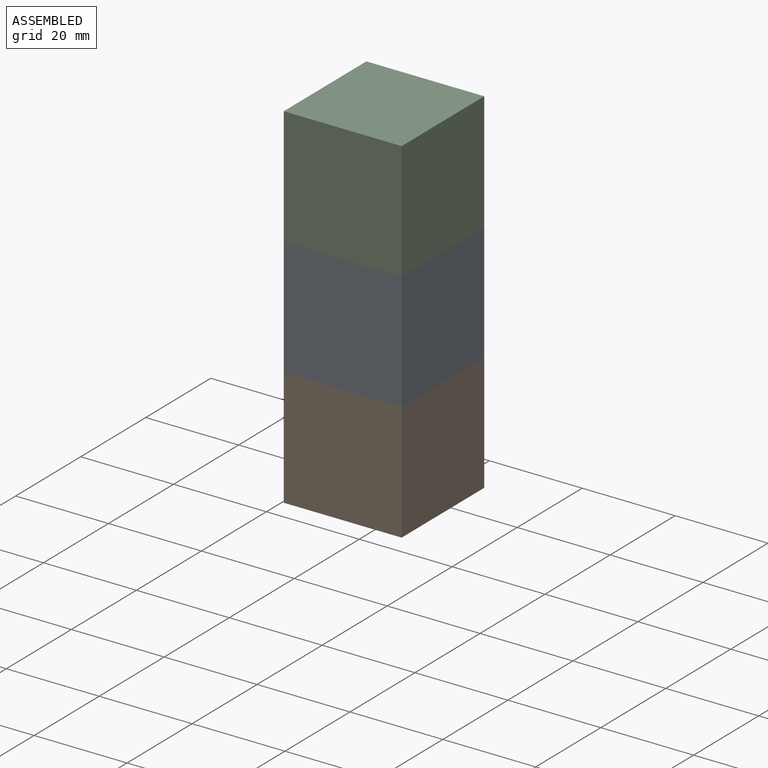
[diagram: assembled view]
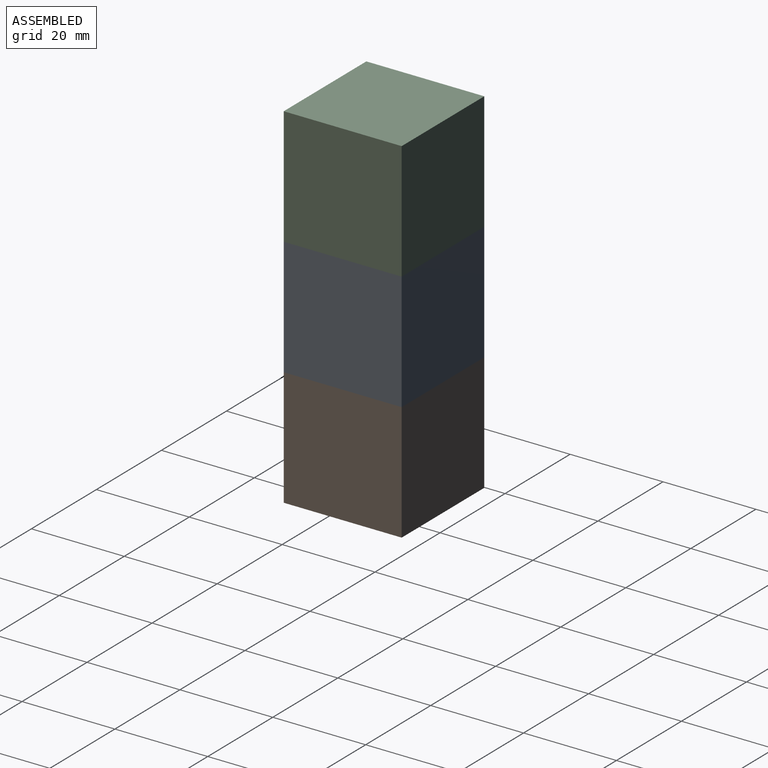
[diagram: assembled view, second angle]
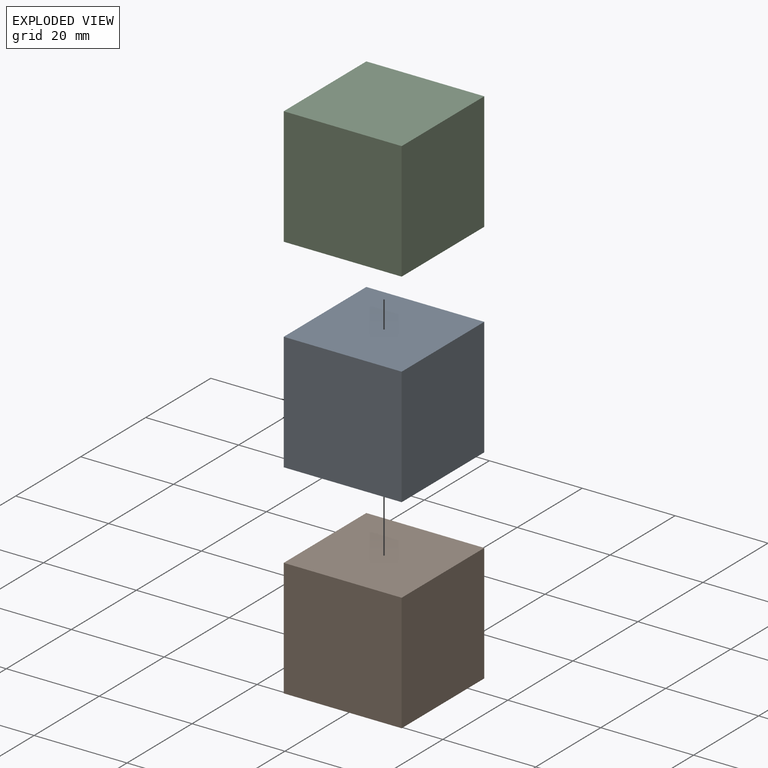
[diagram: exploded view]
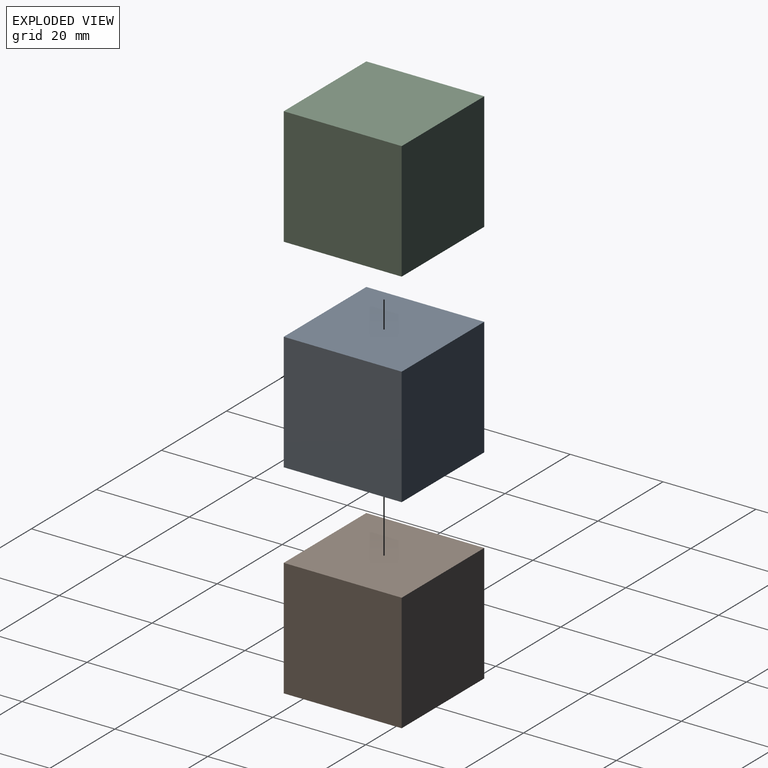
[diagram: exploded view, second angle]
ASSEMBLY  parts=3 mates=4
PART A: 6 faces, bbox 25.4x25.4x25.4 mm
  f0: plane 25.4x25.4mm, normal (-1,0,0), area 645.2mm2, adj f1,f3,f4,f5
  f1: plane 25.4x25.4mm, normal (0,0,-1), area 645.2mm2, adj f0,f2,f4,f5
  f2: plane 25.4x25.4mm, normal (1,0,0), area 645.2mm2, adj f1,f3,f4,f5
  f3: plane 25.4x25.4mm, normal (0,0,1), area 645.2mm2, adj f0,f2,f4,f5
  f4: plane 25.4x25.4mm, normal (0,-1,0), area 645.2mm2, adj f0,f1,f2,f3
  f5: plane 25.4x25.4mm, normal (0,1,0), area 645.2mm2, adj f0,f1,f2,f3
PART B: same geometry as A
PART C: same geometry as A
PLACE A t=(-34.51,2.83,-36.87)mm
PLACE B t=(-34.51,2.83,-62.27)mm
PLACE C t=(-34.51,2.83,-11.47)mm
MATE fastened A.f3 <-> C.f1  axis (0,0,1) through (0.25,-9.87,3.37)mm
MATE fastened A.f1 <-> B.f3  axis (0,0,-1) through (0.25,-9.87,-22.03)mm
MATE cylindrical C.f1 <-> A.f3  axis (0,0,-1) through (0.25,-9.87,3.37)mm
MATE cylindrical B.f3 <-> A.f1  axis (0,0,1) through (0.25,-9.87,-22.03)mm
